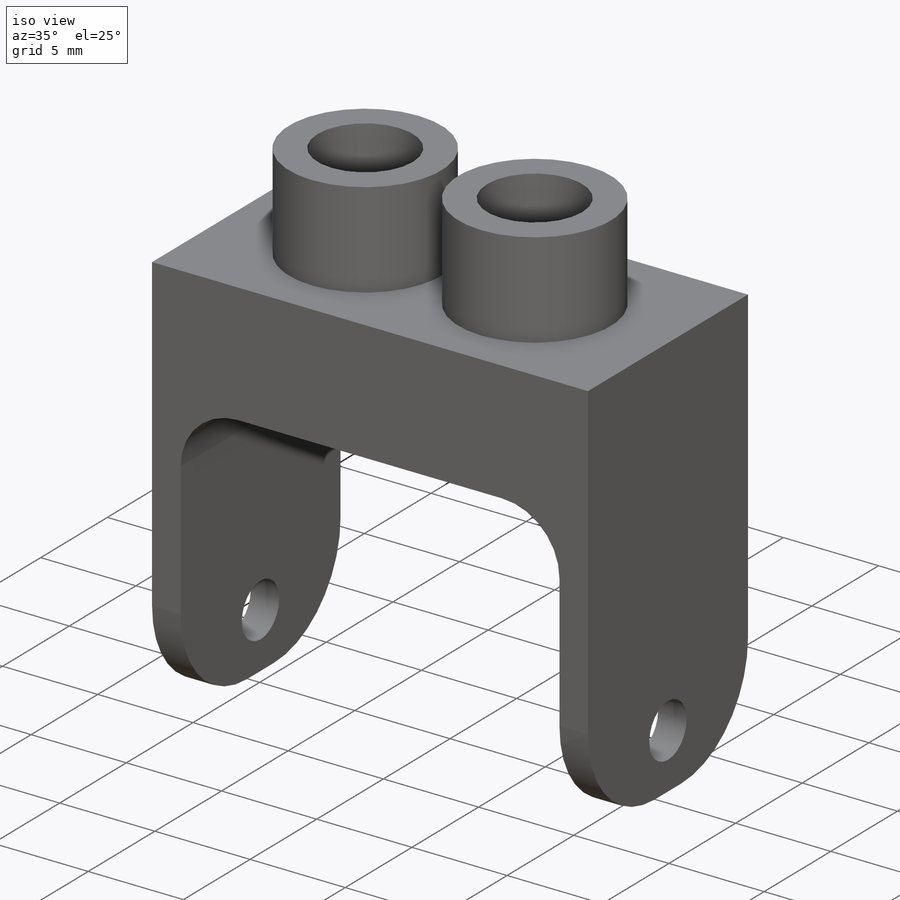
[diagram: iso view]
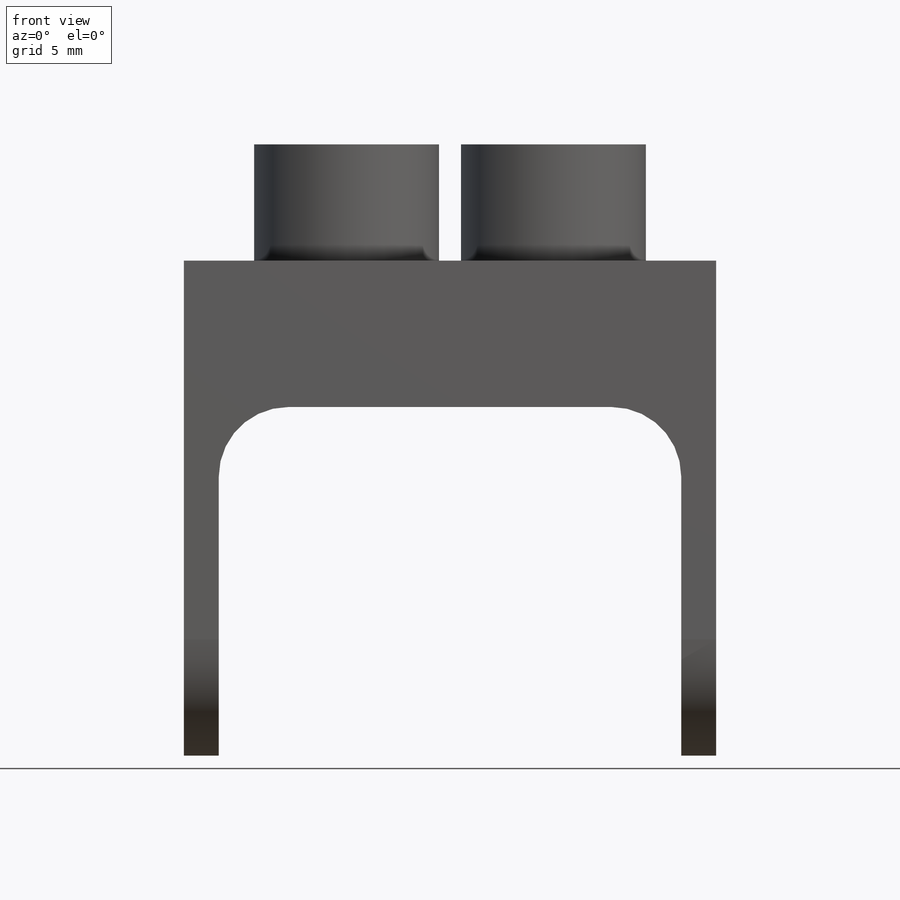
[diagram: front view]
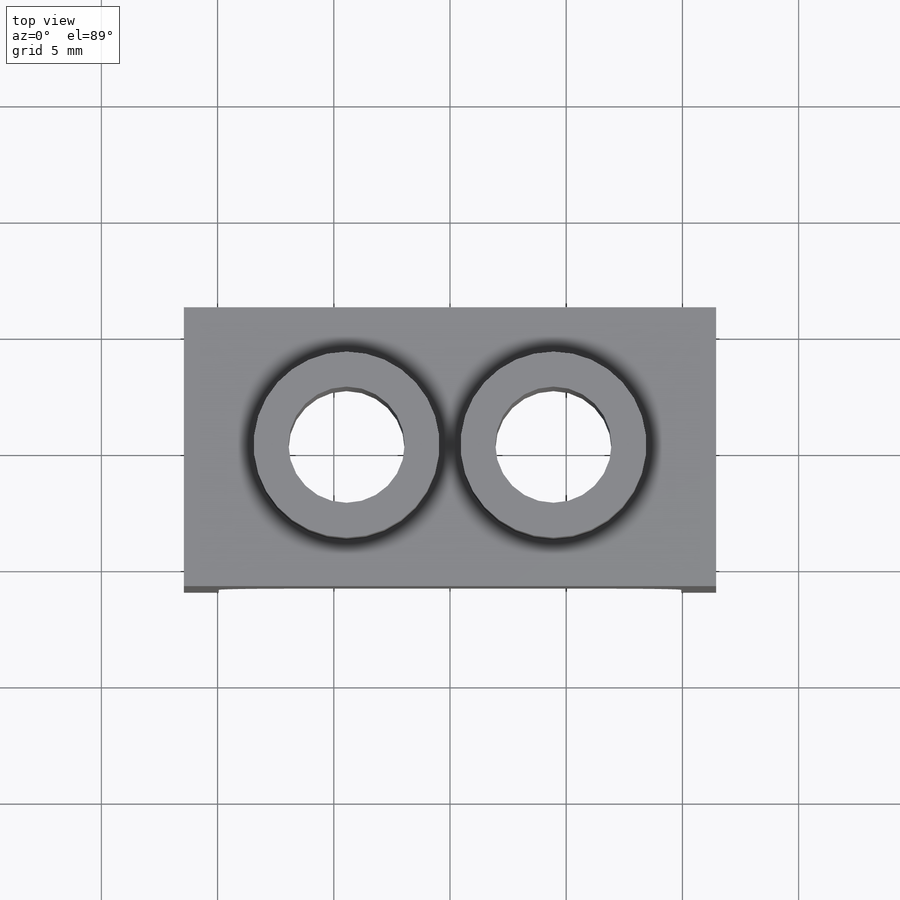
[diagram: top view]
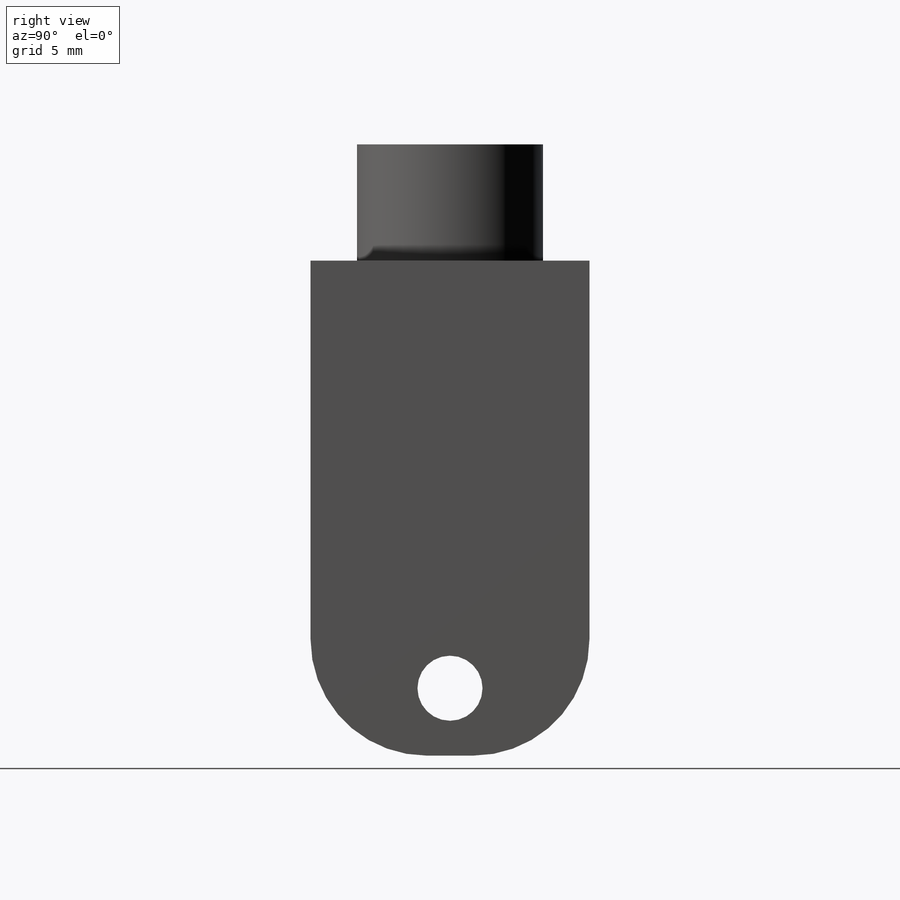
[diagram: right view]
SOLIDWORKS PART (.sldprt)
format: sldprt  version: not decoded by parser v0  size: 203,264 bytes
history: native  units: mm
features: sketch x5, extrude x3, cut_extrude x2, fillet x2, material x1 (+12 scaffold rows collapsed)
feature tree (25):
  scaffold x12  (default folders/planes/origin — collapsed)
  material  "Material <not specified>"
  sketch  "Sketch1"  dims[c1.D1=5.3mm c2.D1=20.9mm c2.D2=2.0mm]
  extrude  "Boss-Extrude1"  Depth=6.3mm
  sketch  "Sketch2"  dims[D1=8.0mm D2=8.0mm D3=8.9mm D4=4.45mm]
  extrude  "Boss-Extrude2"  Depth=5mm
  sketch  "Sketch3"  dims[D1=1.5mm D2=1.5mm]
  cut_extrude  "Cut-Extrude1"  [1 undecoded]
  sketch  "Sketch4"  dims[D1=1.5mm D2=1.5mm]
  extrude  "Boss-Extrude3"  Depth=15mm
  fillet  "Fillet1"  Radius=3mm
  sketch  "Sketch5"  dims[D1=2.8mm D2=2.9mm]
  cut_extrude  "Cut-Extrude2"  [1 undecoded]
  fillet  "Fillet2"  Radius=5mm
decode coverage: 10 of 12 modeling features carry decoded parameters
note: 2 parameter values undecoded
note: suppression state not decoded; provenance and decode notes live in map.json
